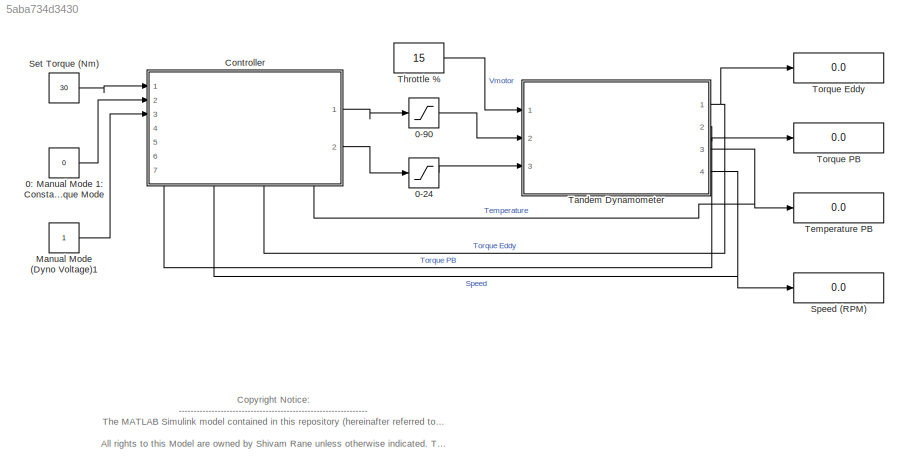
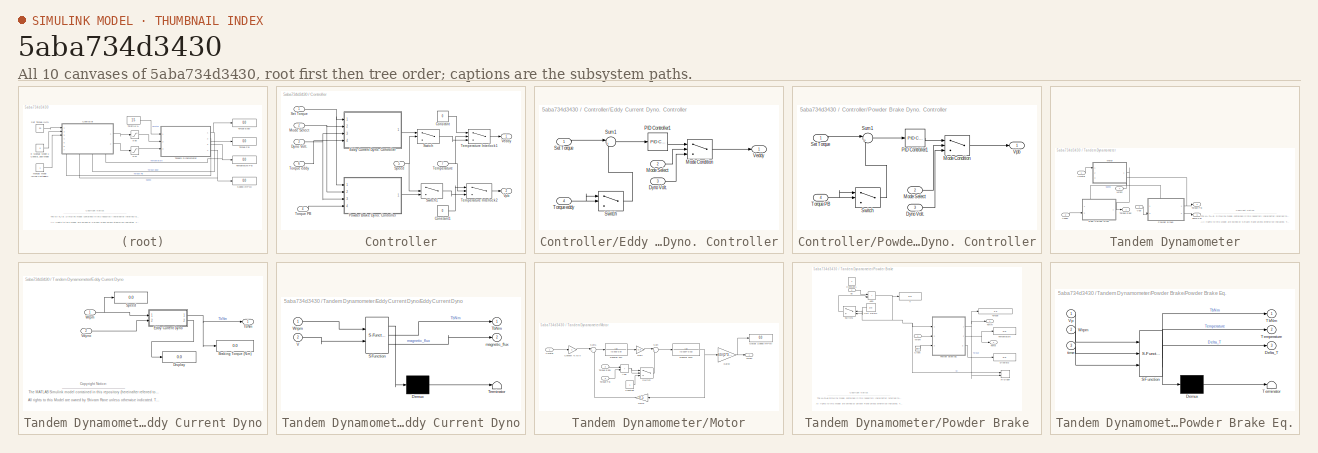
[diagram: thumbnail index - all 10 canvases of the model, root first then tree order]
MODEL slx_5aba734d3430
KIND model
CONFIG AbsTol = auto
CONFIG EnableMultiTasking = off
CONFIG FixedStep = auto
CONFIG MaxStep = 2.0
CONFIG MinStep = auto
CONFIG RelTol = 1e-3
CONFIG SampleTimeConstraint = Unconstrained
CONFIG SolverName = ode15s
CONFIG StartTime = 0.0
CONFIG StopTime = 10000000
BLOCK [Saturate] 0-24
  LowerLimit = 0
  UpperLimit = 24
BLOCK [Saturate] 0-90
  LowerLimit = 0
  UpperLimit = 24
BLOCK [Constant] 0: Manual Mode 1: Constant Torque Mode
  Value = 0
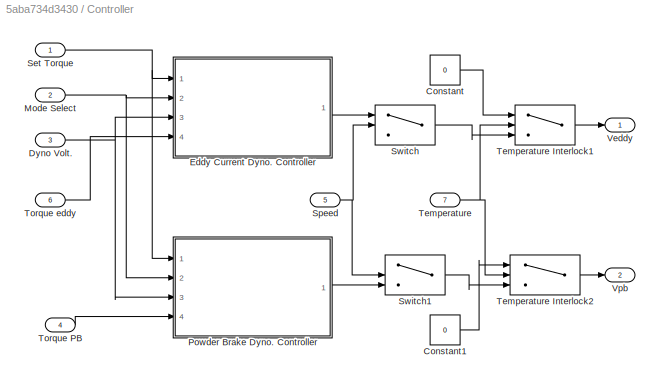
BLOCK [SubSystem] Controller
  NameLocation = top
  PortSchema = {"entries":[{"content":{"sides":[{"content":{"connectorIds":["In1","In2","In3"]},"type":"ConnectorPlacement.EquallySpacedRectSide","uuid":"e82a3496-e399-455a-af6b-fe4576c39b8e"},{"content":{"connectorIds":["Out1","Out2"],"side":"RIGHT"},"type":"ConnectorPlacement.EquallySpacedRectSide","uuid":"65a2a6f4-0c52-49f3-9fc3-064952573b61"},{"content":{"connectorIds":[],"side":"TOP"},"type":"ConnectorPlace...<+426ch>
  Ports = [7, 2]
  RequestExecContextInheritance = off
BLOCK [Constant] Controller/Constant
  Value = 0
BLOCK [Constant] Controller/Constant1
  Value = 0
BLOCK [Inport] Controller/Dyno Volt.
  Port = 3
BLOCK [SubSystem] Controller/Eddy Current Dyno. Controller
  Ports = [4, 1]
  RequestExecContextInheritance = off
BLOCK [Inport] Controller/Eddy Current Dyno. Controller/Dyno Volt.
  Port = 3
BLOCK [Switch] Controller/Eddy Current Dyno. Controller/Mode Condition
  InputSameDT = off
  SaturateOnIntegerOverflow = off
  Threshold = 1
BLOCK [Inport] Controller/Eddy Current Dyno. Controller/Mode Select
  Port = 2
BLOCK [Reference] Controller/Eddy Current Dyno. Controller/PID Controller1  REF=slpidlib/PID Controller
  Ports = [1, 1]
  SourceBlock = slpidlib/PID Controller
  SourceProductBaseCode = SL
  SourceType = PID 1dof
BLOCK [Inport] Controller/Eddy Current Dyno. Controller/Set Torque
BLOCK [Sum] Controller/Eddy Current Dyno. Controller/Sum1
  Inputs = |+-
  Ports = [2, 1]
BLOCK [Switch] Controller/Eddy Current Dyno. Controller/Switch
  InputSameDT = off
  SaturateOnIntegerOverflow = off
BLOCK [Inport] Controller/Eddy Current Dyno. Controller/Torque eddy
  Port = 4
BLOCK [Outport] Controller/Eddy Current Dyno. Controller/Veddy
BLOCK [Inport] Controller/Mode Select
  Port = 2
BLOCK [SubSystem] Controller/Powder Brake Dyno. Controller
  Ports = [4, 1]
  RequestExecContextInheritance = off
BLOCK [Inport] Controller/Powder Brake Dyno. Controller/Dyno Volt.
  Port = 3
BLOCK [Switch] Controller/Powder Brake Dyno. Controller/Mode Condition
  InputSameDT = off
  SaturateOnIntegerOverflow = off
  Threshold = 1
BLOCK [Inport] Controller/Powder Brake Dyno. Controller/Mode Select
  Port = 2
BLOCK [Reference] Controller/Powder Brake Dyno. Controller/PID Controller1  REF=slpidlib/PID Controller
  Ports = [1, 1]
  SourceBlock = slpidlib/PID Controller
  SourceProductBaseCode = SL
  SourceType = PID 1dof
BLOCK [Inport] Controller/Powder Brake Dyno. Controller/Set Torque
BLOCK [Sum] Controller/Powder Brake Dyno. Controller/Sum1
  Inputs = |+-
  Ports = [2, 1]
BLOCK [Switch] Controller/Powder Brake Dyno. Controller/Switch
  InputSameDT = off
  SaturateOnIntegerOverflow = off
BLOCK [Inport] Controller/Powder Brake Dyno. Controller/Torque PB
  Port = 4
BLOCK [Outport] Controller/Powder Brake Dyno. Controller/Vpb
BLOCK [Inport] Controller/Set Torque
BLOCK [Inport] Controller/Speed
  Port = 5
BLOCK [Switch] Controller/Switch
  Criteria = u2 > Threshold
  InputSameDT = off
  SaturateOnIntegerOverflow = off
  Threshold = 600
BLOCK [Switch] Controller/Switch1
  Criteria = u2 > Threshold
  InputSameDT = off
  SaturateOnIntegerOverflow = off
  Threshold = 600
BLOCK [Inport] Controller/Temperature
  Port = 7
BLOCK [Switch] Controller/Temperature Interlock1
  InputSameDT = off
  SaturateOnIntegerOverflow = off
  Threshold = 25
BLOCK [Switch] Controller/Temperature Interlock2
  InputSameDT = off
  SaturateOnIntegerOverflow = off
  Threshold = 25
BLOCK [Inport] Controller/Torque PB
  Port = 4
BLOCK [Inport] Controller/Torque eddy
  Port = 6
BLOCK [Outport] Controller/Veddy
BLOCK [Outport] Controller/Vpb
  Port = 2
BLOCK [Constant] Manual Mode (Dyno Voltage)1
BLOCK [Constant] Set Torque (Nm)
  Value = 30
BLOCK [Display] Speed (RPM)
  Decimation = 1
  Ports = [1]
BLOCK [SubSystem] Tandem Dynamometer
  Ports = [3, 4]
  RequestExecContextInheritance = off
BLOCK [SubSystem] Tandem Dynamometer/Eddy Current Dyno
  Ports = [2, 1]
  RequestExecContextInheritance = off
BLOCK [Display] Tandem Dynamometer/Eddy Current Dyno/Braking Torque (N.m)
  Decimation = 1
  Ports = [1]
BLOCK [Display] Tandem Dynamometer/Eddy Current Dyno/Display
  Decimation = 1
  Ports = [1]
BLOCK [SubSystem] Tandem Dynamometer/Eddy Current Dyno/Eddy Current Dyno
  ErrorFcn = Stateflow.Translate.translate
  PermitHierarchicalResolution = ExplicitOnly
  Ports = [2, 2]
  RequestExecContextInheritance = off
  SFBlockType = MATLAB Function
  TreatAsAtomicUnit = on
BLOCK [Demux] Tandem Dynamometer/Eddy Current Dyno/Eddy Current Dyno/ Demux 
  Outputs = 1
  Ports = [1, 1]
BLOCK [S-Function] Tandem Dynamometer/Eddy Current Dyno/Eddy Current Dyno/ SFunction 
  EnableBusSupport = on
  FunctionName = sf_sfun
  PortCounts = [2 3]
  Ports = [2, 3]
  SFcnIsStateOwnerBlock = off
  SFunctionDeploymentMode = off
  Tag = Stateflow S-Function 2
BLOCK [Terminator] Tandem Dynamometer/Eddy Current Dyno/Eddy Current Dyno/ Terminator 
BLOCK [Outport] Tandem Dynamometer/Eddy Current Dyno/Eddy Current Dyno/TbNm
BLOCK [Inport] Tandem Dynamometer/Eddy Current Dyno/Eddy Current Dyno/V
  Port = 2
BLOCK [Inport] Tandem Dynamometer/Eddy Current Dyno/Eddy Current Dyno/Wrpm
BLOCK [Outport] Tandem Dynamometer/Eddy Current Dyno/Eddy Current Dyno/magnetic_flux
  Port = 2
BLOCK [Display] Tandem Dynamometer/Eddy Current Dyno/Speed
  Decimation = 1
  Ports = [1]
BLOCK [Outport] Tandem Dynamometer/Eddy Current Dyno/TbNm
BLOCK [Inport] Tandem Dynamometer/Eddy Current Dyno/Vdyno
  Port = 2
BLOCK [Inport] Tandem Dynamometer/Eddy Current Dyno/Wrpm
BLOCK [SubSystem] Tandem Dynamometer/Motor
  NameLocation = top
  PortSchema = {"entries":[{"content":{"sides":[{"content":{"connectorIds":["In1"]},"type":"ConnectorPlacement.EquallySpacedRectSide","uuid":"b326c5d8-ba72-4ed0-b26f-6b1bf398d1d6"},{"content":{"connectorIds":["In2","In3"],"side":"RIGHT"},"type":"ConnectorPlacement.EquallySpacedRectSide","uuid":"9cbdfaa4-e8f9-4b5c-8067-0c75074a91af"},{"content":{"connectorIds":[],"side":"TOP"},"type":"ConnectorPlacement.EquallySp...<+395ch>
  Ports = [3, 1]
  RequestExecContextInheritance = off
BLOCK [Sum] Tandem Dynamometer/Motor/Add
  IconShape = rectangular
  Ports = [2, 1]
BLOCK [Constant] Tandem Dynamometer/Motor/Constant
BLOCK [Gain] Tandem Dynamometer/Motor/Convert % to V
  Gain = 2
BLOCK [Gain] Tandem Dynamometer/Motor/Gain
  Gain = 0.8
BLOCK [Gain] Tandem Dynamometer/Motor/Gain1
  Gain = 0.5
BLOCK [Gain] Tandem Dynamometer/Motor/Gain2
  Gain = 60/(2*3.14)
BLOCK [Display] Tandem Dynamometer/Motor/Output Speed (RPM)
  Decimation = 1
  Ports = [1]
BLOCK [Sum] Tandem Dynamometer/Motor/Sum
  Inputs = |+-
  Ports = [2, 1]
BLOCK [Sum] Tandem Dynamometer/Motor/Sum1
  Inputs = |+-
  Ports = [2, 1]
BLOCK [Switch] Tandem Dynamometer/Motor/Switch
  Criteria = u2 > Threshold
  InputSameDT = off
  SaturateOnIntegerOverflow = off
BLOCK [Inport] Tandem Dynamometer/Motor/Torque Eddy
  Port = 2
BLOCK [Inport] Tandem Dynamometer/Motor/Torque PB
  Port = 3
BLOCK [TransferFcn] Tandem Dynamometer/Motor/Transfer Fcn
  Denominator = [0.003 0.5]
BLOCK [TransferFcn] Tandem Dynamometer/Motor/Transfer Fcn1
  Denominator = [0.0167 0.01]
  ParameterTunability = Optimized
BLOCK [Inport] Tandem Dynamometer/Motor/Vmotor
BLOCK [Outport] Tandem Dynamometer/Motor/Wrpm
BLOCK [SubSystem] Tandem Dynamometer/Powder Brake
  Ports = [2, 2]
  RequestExecContextInheritance = off
BLOCK [Sum] Tandem Dynamometer/Powder Brake/Add1
  IconShape = rectangular
  Ports = [2, 1]
BLOCK [Clock] Tandem Dynamometer/Powder Brake/Clock
BLOCK [Constant] Tandem Dynamometer/Powder Brake/Constant1
BLOCK [Display] Tandem Dynamometer/Powder Brake/Display2
  Decimation = 1
  Ports = [1]
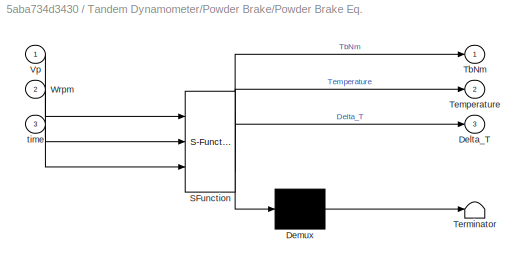
BLOCK [SubSystem] Tandem Dynamometer/Powder Brake/Powder Brake Eq.
  ErrorFcn = Stateflow.Translate.translate
  PermitHierarchicalResolution = ExplicitOnly
  Ports = [3, 3]
  RequestExecContextInheritance = off
  SFBlockType = MATLAB Function
  TreatAsAtomicUnit = on
BLOCK [Demux] Tandem Dynamometer/Powder Brake/Powder Brake Eq./ Demux 
  Outputs = 1
  Ports = [1, 1]
BLOCK [S-Function] Tandem Dynamometer/Powder Brake/Powder Brake Eq./ SFunction 
  EnableBusSupport = on
  FunctionName = sf_sfun
  PortCounts = [3 4]
  Ports = [3, 4]
  SFcnIsStateOwnerBlock = off
  SFunctionDeploymentMode = off
  Tag = Stateflow S-Function 5
BLOCK [Terminator] Tandem Dynamometer/Powder Brake/Powder Brake Eq./ Terminator 
BLOCK [Outport] Tandem Dynamometer/Powder Brake/Powder Brake Eq./Delta_T
  Port = 3
BLOCK [Outport] Tandem Dynamometer/Powder Brake/Powder Brake Eq./TbNm
BLOCK [Outport] Tandem Dynamometer/Powder Brake/Powder Brake Eq./Temperature
  Port = 2
BLOCK [Inport] Tandem Dynamometer/Powder Brake/Powder Brake Eq./Vp
BLOCK [Inport] Tandem Dynamometer/Powder Brake/Powder Brake Eq./Wrpm
  Port = 2
BLOCK [Inport] Tandem Dynamometer/Powder Brake/Powder Brake Eq./time
  Port = 3
BLOCK [Switch] Tandem Dynamometer/Powder Brake/Switch1
  Criteria = u2 > Threshold
  InputSameDT = off
  SaturateOnIntegerOverflow = off
  Threshold = 24
BLOCK [Outport] Tandem Dynamometer/Powder Brake/TbNm
BLOCK [Outport] Tandem Dynamometer/Powder Brake/Temp
  Port = 2
BLOCK [Display] Tandem Dynamometer/Powder Brake/Temperature
  Decimation = 1
  Ports = [1]
BLOCK [Display] Tandem Dynamometer/Powder Brake/Torque
  Decimation = 1
  Format = long
  Ports = [1]
BLOCK [UnitDelay] Tandem Dynamometer/Powder Brake/Unit Delay1
  HasFrameUpgradeWarning = on
  SampleTime = 10000
BLOCK [Display] Tandem Dynamometer/Powder Brake/V
  Decimation = 1
  Ports = [1]
BLOCK [Inport] Tandem Dynamometer/Powder Brake/Vp
  Port = 2
BLOCK [Inport] Tandem Dynamometer/Powder Brake/Wrpm
BLOCK [Record] Tandem Dynamometer/Powder Brake/XY Graph
  CompatibilityTag = XY
  FileSettingsInternal = {"entries":[{"content":{"excelSettings":{"content":{},"type":"Streamout.ExcelSettings"}},"type":"Streamout.FileSettingStorage","uuid":"9a5bce44-44d7-4340-837c-82606f0fa55a"}],"packageUris":["http://schema.mathworks.com/mf0/streamout_blocks/R2020a"],"version":"1.0"}
  Layout = [1 1]
  Ports = [2]
  SignalsInternal = {"entries":[{"content":{"signals":[{"content":{"blockPath":["controller_dyno/Tandem Dynamometer/Powder Brake/XY Graph"],"channel":[],"dimensions":[1],"domain":"controller_dyno/Tandem Dynamometer/Powder Brake/XY Graph","lineColor":"#ff6929","plots":[],"port":1,"sid":[],"signalID":9,"signalName":"Vp"},"type":"RecordBlkView.Signal","uuid":"9ab077b7-73b6-430b-b8f2-c30c711ec71d"},{"content":{"blockPath...<+502ch>
  VisualizationBindings = {"xyplotplugin":{"info":[{"series":[],"subplotID":1}]}}
BLOCK [Outport] Tandem Dynamometer/Temp PB
  Port = 3
BLOCK [Outport] Tandem Dynamometer/Torque Eddy
BLOCK [Outport] Tandem Dynamometer/Torque PB
  Port = 2
BLOCK [Inport] Tandem Dynamometer/Veddy
  Port = 2
BLOCK [Inport] Tandem Dynamometer/Vmotor
BLOCK [Inport] Tandem Dynamometer/Vpb
  Port = 3
BLOCK [Outport] Tandem Dynamometer/Wrpm
  Port = 4
BLOCK [Display] Temperature PB
  Decimation = 1
  Ports = [1]
BLOCK [Constant] Throttle %
  Value = 15
BLOCK [Display] Torque Eddy
  Decimation = 1
  Ports = [1]
BLOCK [Display] Torque PB
  Decimation = 1
  Ports = [1]
ANNOTATION (root): <copyright redacted>
ANNOTATION Tandem Dynamometer: <copyright redacted>
ANNOTATION Tandem Dynamometer/Eddy Current Dyno: <copyright redacted>
ANNOTATION Tandem Dynamometer/Powder Brake: <copyright redacted>
LINE 0-24:1 -> Tandem Dynamometer:3
LINE 0-90:1 -> Tandem Dynamometer:2
LINE 0: Manual Mode 1: Constant Torque Mode:1 -> Controller:2
LINE Controller/Constant1:1 -> Controller/Temperature Interlock2:1
LINE Controller/Constant:1 -> Controller/Temperature Interlock1:1
NET Controller/Dyno Volt.:1 -> Controller/Eddy Current Dyno. Controller:3, Controller/Powder Brake Dyno. Controller:3
LINE Controller/Eddy Current Dyno. Controller/Dyno Volt.:1 -> Controller/Eddy Current Dyno. Controller/Mode Condition:3
LINE Controller/Eddy Current Dyno. Controller/Mode Condition:1 -> Controller/Eddy Current Dyno. Controller/Veddy:1
LINE Controller/Eddy Current Dyno. Controller/Mode Select:1 -> Controller/Eddy Current Dyno. Controller/Mode Condition:2
LINE Controller/Eddy Current Dyno. Controller/PID Controller1:1 -> Controller/Eddy Current Dyno. Controller/Mode Condition:1
LINE Controller/Eddy Current Dyno. Controller/Set Torque:1 -> Controller/Eddy Current Dyno. Controller/Sum1:1
LINE Controller/Eddy Current Dyno. Controller/Sum1:1 -> Controller/Eddy Current Dyno. Controller/PID Controller1:1
LINE Controller/Eddy Current Dyno. Controller/Switch:1 -> Controller/Eddy Current Dyno. Controller/Sum1:2
NET Controller/Eddy Current Dyno. Controller/Torque eddy:1 -> Controller/Eddy Current Dyno. Controller/Switch:1, Controller/Eddy Current Dyno. Controller/Switch:2
LINE Controller/Eddy Current Dyno. Controller:1 -> Controller/Switch:1
NET Controller/Mode Select:1 -> Controller/Eddy Current Dyno. Controller:2, Controller/Powder Brake Dyno. Controller:2
LINE Controller/Powder Brake Dyno. Controller/Dyno Volt.:1 -> Controller/Powder Brake Dyno. Controller/Mode Condition:3
LINE Controller/Powder Brake Dyno. Controller/Mode Condition:1 -> Controller/Powder Brake Dyno. Controller/Vpb:1
LINE Controller/Powder Brake Dyno. Controller/Mode Select:1 -> Controller/Powder Brake Dyno. Controller/Mode Condition:2
LINE Controller/Powder Brake Dyno. Controller/PID Controller1:1 -> Controller/Powder Brake Dyno. Controller/Mode Condition:1
LINE Controller/Powder Brake Dyno. Controller/Set Torque:1 -> Controller/Powder Brake Dyno. Controller/Sum1:1
LINE Controller/Powder Brake Dyno. Controller/Sum1:1 -> Controller/Powder Brake Dyno. Controller/PID Controller1:1
LINE Controller/Powder Brake Dyno. Controller/Switch:1 -> Controller/Powder Brake Dyno. Controller/Sum1:2
NET Controller/Powder Brake Dyno. Controller/Torque PB:1 -> Controller/Powder Brake Dyno. Controller/Switch:1, Controller/Powder Brake Dyno. Controller/Switch:2
LINE Controller/Powder Brake Dyno. Controller:1 -> Controller/Switch1:3
NET Controller/Set Torque:1 -> Controller/Eddy Current Dyno. Controller:1, Controller/Powder Brake Dyno. Controller:1
NET Controller/Speed:1 -> Controller/Switch1:2, Controller/Switch:2
LINE Controller/Switch1:1 -> Controller/Temperature Interlock2:3
LINE Controller/Switch:1 -> Controller/Temperature Interlock1:3
LINE Controller/Temperature Interlock1:1 -> Controller/Veddy:1
LINE Controller/Temperature Interlock2:1 -> Controller/Vpb:1
NET Controller/Temperature:1 -> Controller/Temperature Interlock1:2, Controller/Temperature Interlock2:2
LINE Controller/Torque PB:1 -> Controller/Powder Brake Dyno. Controller:4
LINE Controller/Torque eddy:1 -> Controller/Eddy Current Dyno. Controller:4
LINE Controller:1 -> 0-90:1
LINE Controller:2 -> 0-24:1
LINE Manual Mode (Dyno Voltage)1:1 -> Controller:3
LINE Set Torque (Nm):1 -> Controller:1
NET Tandem Dynamometer/Eddy Current Dyno/Eddy Current Dyno:1 -> Tandem Dynamometer/Eddy Current Dyno/Braking Torque (N.m):1, Tandem Dynamometer/Eddy Current Dyno/TbNm:1
LINE Tandem Dynamometer/Eddy Current Dyno/Eddy Current Dyno:2 -> Tandem Dynamometer/Eddy Current Dyno/Display:1
LINE Tandem Dynamometer/Eddy Current Dyno/Vdyno:1 -> Tandem Dynamometer/Eddy Current Dyno/Eddy Current Dyno:2
NET Tandem Dynamometer/Eddy Current Dyno/Wrpm:1 -> Tandem Dynamometer/Eddy Current Dyno/Eddy Current Dyno:1, Tandem Dynamometer/Eddy Current Dyno/Speed:1
NET Tandem Dynamometer/Eddy Current Dyno:1 -> Tandem Dynamometer/Motor:2, Tandem Dynamometer/Torque Eddy:1
NET Tandem Dynamometer/Motor/Add:1 -> Tandem Dynamometer/Motor/Switch:1, Tandem Dynamometer/Motor/Switch:2
LINE Tandem Dynamometer/Motor/Constant:1 -> Tandem Dynamometer/Motor/Switch:3
LINE Tandem Dynamometer/Motor/Convert % to V:1 -> Tandem Dynamometer/Motor/Sum1:1
LINE Tandem Dynamometer/Motor/Gain1:1 -> Tandem Dynamometer/Motor/Sum1:2
NET Tandem Dynamometer/Motor/Gain2:1 -> Tandem Dynamometer/Motor/Output Speed (RPM):1, Tandem Dynamometer/Motor/Wrpm:1
LINE Tandem Dynamometer/Motor/Gain:1 -> Tandem Dynamometer/Motor/Sum:1
LINE Tandem Dynamometer/Motor/Sum1:1 -> Tandem Dynamometer/Motor/Transfer Fcn:1
LINE Tandem Dynamometer/Motor/Sum:1 -> Tandem Dynamometer/Motor/Transfer Fcn1:1
LINE Tandem Dynamometer/Motor/Switch:1 -> Tandem Dynamometer/Motor/Sum:2
LINE Tandem Dynamometer/Motor/Torque Eddy:1 -> Tandem Dynamometer/Motor/Add:1
LINE Tandem Dynamometer/Motor/Torque PB:1 -> Tandem Dynamometer/Motor/Add:2
NET Tandem Dynamometer/Motor/Transfer Fcn1:1 -> Tandem Dynamometer/Motor/Gain1:1, Tandem Dynamometer/Motor/Gain2:1
LINE Tandem Dynamometer/Motor/Transfer Fcn:1 -> Tandem Dynamometer/Motor/Gain:1
LINE Tandem Dynamometer/Motor/Vmotor:1 -> Tandem Dynamometer/Motor/Convert % to V:1
NET Tandem Dynamometer/Motor:1 -> Tandem Dynamometer/Eddy Current Dyno:1, Tandem Dynamometer/Powder Brake:1, Tandem Dynamometer/Wrpm:1
NET Tandem Dynamometer/Powder Brake/Add1:1 -> Tandem Dynamometer/Powder Brake/Powder Brake Eq.:1, Tandem Dynamometer/Powder Brake/Switch1:2, Tandem Dynamometer/Powder Brake/V:1, Tandem Dynamometer/Powder Brake/XY Graph:1
LINE Tandem Dynamometer/Powder Brake/Clock:1 -> Tandem Dynamometer/Powder Brake/Powder Brake Eq.:3
NET Tandem Dynamometer/Powder Brake/Powder Brake Eq.:1 -> Tandem Dynamometer/Powder Brake/TbNm:1, Tandem Dynamometer/Powder Brake/Torque:1, Tandem Dynamometer/Powder Brake/XY Graph:2
NET Tandem Dynamometer/Powder Brake/Powder Brake Eq.:2 -> Tandem Dynamometer/Powder Brake/Temp:1, Tandem Dynamometer/Powder Brake/Temperature:1
LINE Tandem Dynamometer/Powder Brake/Powder Brake Eq.:3 -> Tandem Dynamometer/Powder Brake/Display2:1
LINE Tandem Dynamometer/Powder Brake/Switch1:1 -> Tandem Dynamometer/Powder Brake/Add1:2
LINE Tandem Dynamometer/Powder Brake/Unit Delay1:1 -> Tandem Dynamometer/Powder Brake/Switch1:3
LINE Tandem Dynamometer/Powder Brake/Vp:1 -> Tandem Dynamometer/Powder Brake/Add1:1
LINE Tandem Dynamometer/Powder Brake/Wrpm:1 -> Tandem Dynamometer/Powder Brake/Powder Brake Eq.:2
NET Tandem Dynamometer/Powder Brake:1 -> Tandem Dynamometer/Motor:3, Tandem Dynamometer/Torque PB:1
LINE Tandem Dynamometer/Powder Brake:2 -> Tandem Dynamometer/Temp PB:1
LINE Tandem Dynamometer/Veddy:1 -> Tandem Dynamometer/Eddy Current Dyno:2
LINE Tandem Dynamometer/Vmotor:1 -> Tandem Dynamometer/Motor:1
LINE Tandem Dynamometer/Vpb:1 -> Tandem Dynamometer/Powder Brake:2
NET Tandem Dynamometer:1 -> Controller:6, Torque Eddy:1
NET Tandem Dynamometer:2 -> Controller:4, Torque PB:1
NET Tandem Dynamometer:3 -> Controller:7, Temperature PB:1
NET Tandem Dynamometer:4 -> Controller:5, Speed (RPM):1
LINE Throttle %:1 -> Tandem Dynamometer:1
note: NET lines group one-source signal fan-out (src -> all destinations, sorted); 1:1 wires keep LINE
CHART Tandem Dynamometer/Eddy Current Dyno/Eddy Current Dyno states=1 transitions=1
  STATE_LABEL 'eML_blk_kernel()'
  STATE_LABEL 'SCRIPT:\nfunction [TbNm,magnetic_flux]= fcn(Wrpm, V)\n\n% "Numerical_Data" refers to the design parameters of the Dynamometer\n\nr = "Numerical_Data";% Radius(mm): Round core condidered \nA = 3.14*r*r; % Area (mm2)\n\n% Rotating disk parameters\nd = "Numerical_Data"; % Thickness of rotating disk (mm)\na = "Numerical_Data"; % distance from rotating center to the center of pole shoe (mm)\nPo = "Numerical_Data"...<+1064ch>'
CHART Tandem Dynamometer/Powder Brake/Powder Brake Eq. states=1 transitions=1
  STATE_LABEL 'eML_blk_kernel()'
  STATE_LABEL 'SCRIPT:\nfunction [TbNm, Temperature, Delta_T]= fcn(Vp,Wrpm,time)\n\n% "Numerical_Data" refers to the design parameters of the Dynamometer\n\nN = "Numerical_Data"; % number of turns of the coil\nI = (5*Vp)/24; % currrent in the range of 0 to 8 A\n\n\nw = "Numerical_Data"; % disc width (mm)\nDd = "Numerical_Data"; % disc outer diameter (mm)\nDc = "Numerical_Data"; % inner diameter of coil body\n\nrd = Dd/2; % d...<+1099ch>'
CHART  states=0 transitions=0
CHART  states=0 transitions=0
